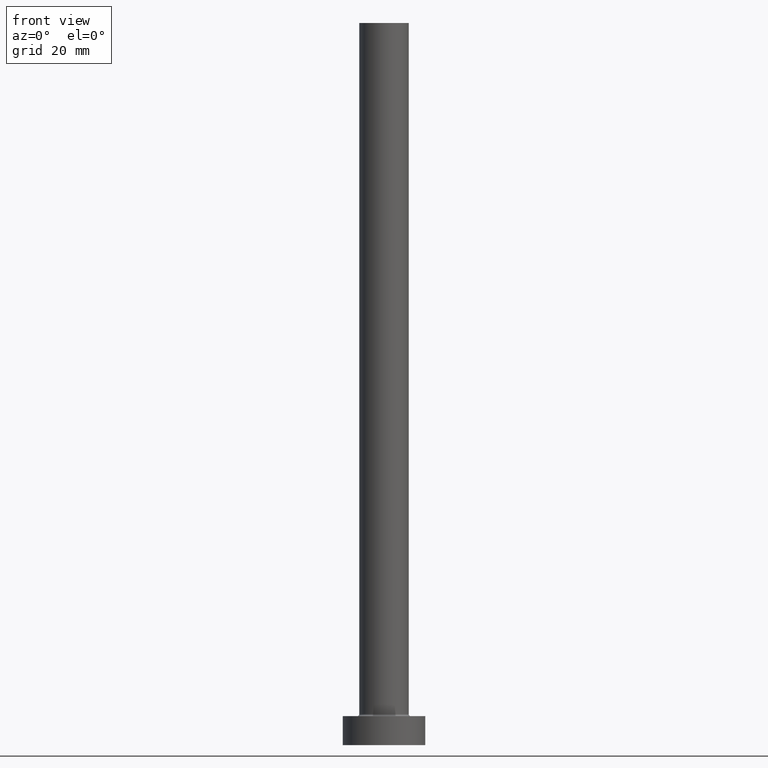
[diagram: clean part render]
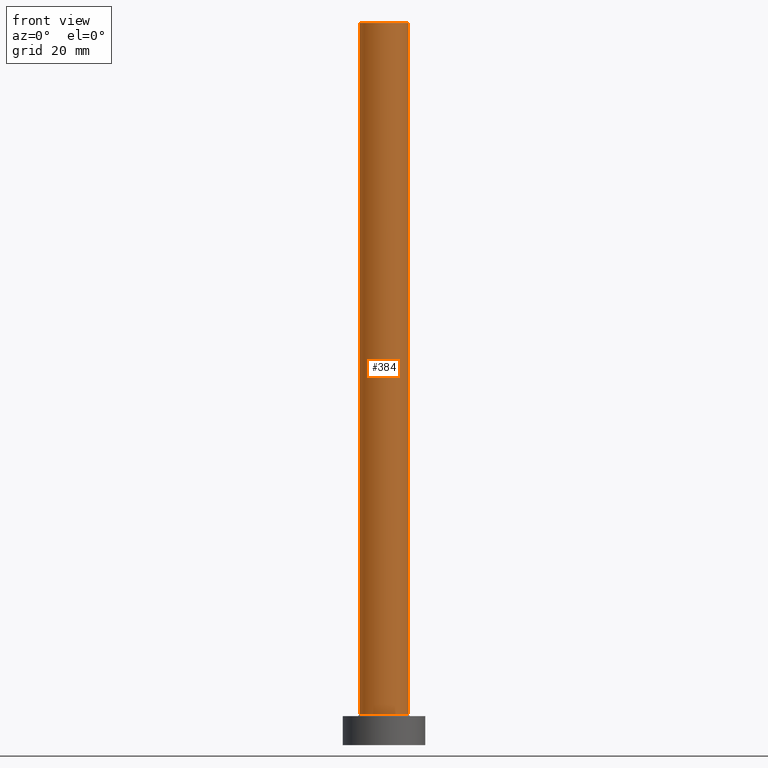
[diagram: same view with one face highlighted and labeled with its STEP entity id]
A machine part, front view. The second image highlights one B-rep face of the part: STEP entity #384.
In plain terms, the highlighted cylindrical surface (edge-blend (fillet) strip) has radius 6 mm, axis along (-0, -0, -1).
Its self-contained STEP definition (entity closure, byte-faithful):
#8 = CYLINDRICAL_SURFACE ( 'NONE', #185, 6.000000000000000888 ) ;
#10 = ORIENTED_EDGE ( 'NONE', *, *, #254, .T. ) ;
#19 = VERTEX_POINT ( 'NONE', #248 ) ;
#31 = DIRECTION ( 'NONE',  ( -0.000000000000000000, -0.000000000000000000, -1.000000000000000000 ) ) ;
#52 = DIRECTION ( 'NONE',  ( -1.000000000000000000, 0.000000000000000000, 0.000000000000000000 ) ) ;
#56 = CARTESIAN_POINT ( 'NONE',  ( 0.000000000000000000, 0.000000000000000000, 175.0000000000000284 ) ) ;
#63 = CARTESIAN_POINT ( 'NONE',  ( -6.000000000000000888, 0.000000000000000000, 7.500000000000007105 ) ) ;
#75 = ORIENTED_EDGE ( 'NONE', *, *, #348, .T. ) ;
#90 = EDGE_CURVE ( 'NONE', #144, #228, #421, .T. ) ;
#118 = VECTOR ( 'NONE', #31, 1000.000000000000000 ) ;
#122 = EDGE_LOOP ( 'NONE', ( #334, #174, #10, #75 ) ) ;
#124 = DIRECTION ( 'NONE',  ( 1.000000000000000000, 0.000000000000000000, 0.000000000000000000 ) ) ;
#128 = CARTESIAN_POINT ( 'NONE',  ( 6.000000000000000888, 7.347880794884119736E-16, 175.0000000000000284 ) ) ;
#144 = VERTEX_POINT ( 'NONE', #128 ) ;
#147 = VECTOR ( 'NONE', #383, 1000.000000000000000 ) ;
#152 = EDGE_CURVE ( 'NONE', #19, #144, #195, .T. ) ;
#154 = CARTESIAN_POINT ( 'NONE',  ( 6.000000000000000888, 7.347880794884119736E-16, 7.500000000000007105 ) ) ;
#169 = FACE_OUTER_BOUND ( 'NONE', #122, .T. ) ;
#174 = ORIENTED_EDGE ( 'NONE', *, *, #152, .F. ) ;
#176 = VERTEX_POINT ( 'NONE', #63 ) ;
#185 = AXIS2_PLACEMENT_3D ( 'NONE', #444, #406, #52 ) ;
#186 = LINE ( 'NONE', #321, #118 ) ;
#195 = CIRCLE ( 'NONE', #243, 6.000000000000000888 ) ;
#202 = DIRECTION ( 'NONE',  ( 0.000000000000000000, 0.000000000000000000, 1.000000000000000000 ) ) ;
#228 = VERTEX_POINT ( 'NONE', #154 ) ;
#230 = CARTESIAN_POINT ( 'NONE',  ( 0.000000000000000000, 0.000000000000000000, 7.500000000000007105 ) ) ;
#238 = CIRCLE ( 'NONE', #299, 6.000000000000000888 ) ;
#243 = AXIS2_PLACEMENT_3D ( 'NONE', #56, #202, #443 ) ;
#248 = CARTESIAN_POINT ( 'NONE',  ( -6.000000000000000888, 0.000000000000000000, 175.0000000000000284 ) ) ;
#250 = CARTESIAN_POINT ( 'NONE',  ( 6.000000000000000888, 7.347880794884119736E-16, 175.0000000000000284 ) ) ;
#254 = EDGE_CURVE ( 'NONE', #19, #176, #186, .T. ) ;
#299 = AXIS2_PLACEMENT_3D ( 'NONE', #230, #332, #124 ) ;
#321 = CARTESIAN_POINT ( 'NONE',  ( -6.000000000000000888, 0.000000000000000000, 175.0000000000000284 ) ) ;
#332 = DIRECTION ( 'NONE',  ( 0.000000000000000000, 0.000000000000000000, 1.000000000000000000 ) ) ;
#334 = ORIENTED_EDGE ( 'NONE', *, *, #90, .F. ) ;
#348 = EDGE_CURVE ( 'NONE', #176, #228, #238, .T. ) ;
#383 = DIRECTION ( 'NONE',  ( -0.000000000000000000, -0.000000000000000000, -1.000000000000000000 ) ) ;
#384 = ADVANCED_FACE ( 'NONE', ( #169 ), #8, .T. ) ;
#406 = DIRECTION ( 'NONE',  ( -0.000000000000000000, -0.000000000000000000, -1.000000000000000000 ) ) ;
#421 = LINE ( 'NONE', #250, #147 ) ;
#443 = DIRECTION ( 'NONE',  ( 1.000000000000000000, 0.000000000000000000, 0.000000000000000000 ) ) ;
#444 = CARTESIAN_POINT ( 'NONE',  ( 0.000000000000000000, 0.000000000000000000, 175.0000000000000284 ) ) ;